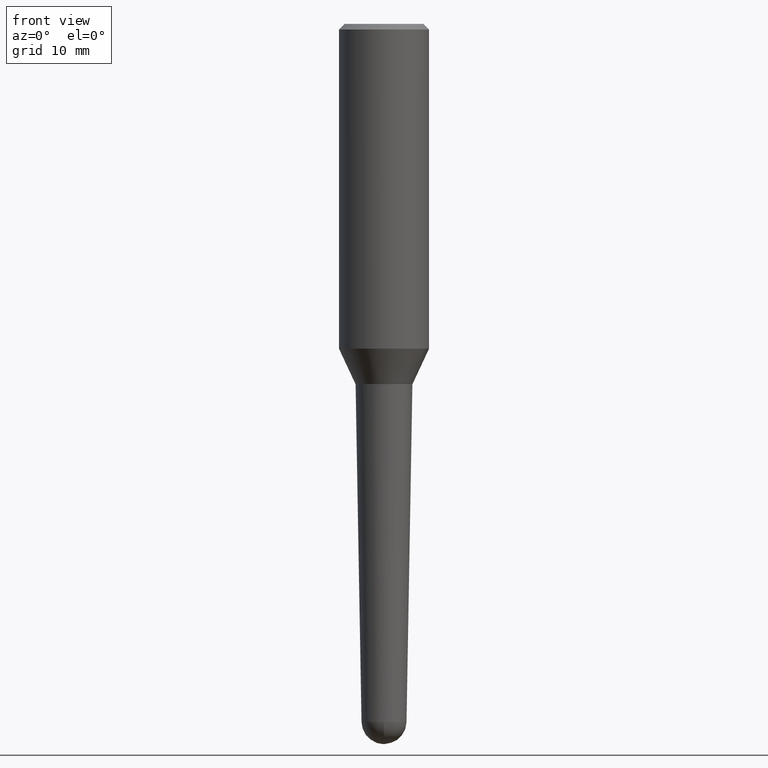
[diagram: clean part render]
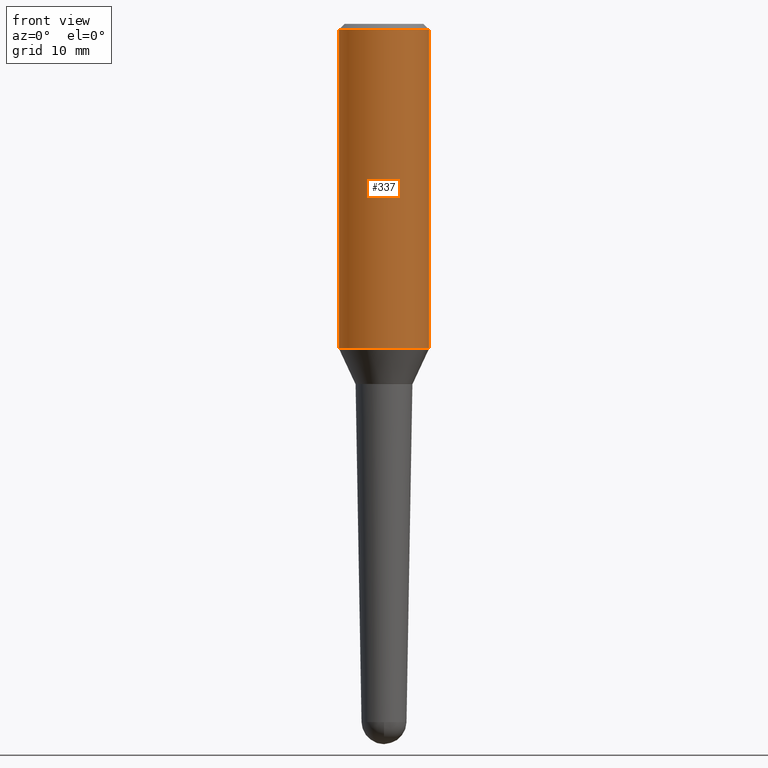
[diagram: same view with one face highlighted and labeled with its STEP entity id]
A machine part, front view. The second image highlights one B-rep face of the part: STEP entity #337.
In plain terms, the highlighted cylindrical surface (partial cylindrical patch) has radius 6.35 mm, axis along (-0, 0, 1).
Its self-contained STEP definition (entity closure, byte-faithful):
#16 = DIRECTION ( 'NONE',  ( -2.445468806185136877E-29, 3.491481338843145188E-15, 1.000000000000000000 ) ) ;
#28 = CARTESIAN_POINT ( 'NONE',  ( -0.2500000000000000000, -1.427178414605507168E-15, -0.03125000000000005551 ) ) ;
#30 = EDGE_LOOP ( 'NONE', ( #117, #183, #320, #225 ) ) ;
#40 = CARTESIAN_POINT ( 'NONE',  ( 7.642090019328565002E-31, -1.091087918388484967E-16, -0.03125000000000005551 ) ) ;
#43 = CARTESIAN_POINT ( 'NONE',  ( -0.2500000000000001110, 1.776356839400253226E-15, 5.931196827434174486E-16 ) ) ;
#45 = VECTOR ( 'NONE', #16, 39.37007874015748143 ) ;
#53 = EDGE_CURVE ( 'NONE', #445, #373, #306, .T. ) ;
#59 = VERTEX_POINT ( 'NONE', #28 ) ;
#84 = CARTESIAN_POINT ( 'NONE',  ( 0.2500000000000001110, -1.745740669421565297E-15, 5.931196827434418047E-16 ) ) ;
#86 = CIRCLE ( 'NONE', #100, 0.2500000000000000000 ) ;
#89 = EDGE_CURVE ( 'NONE', #59, #196, #86, .T. ) ;
#100 = AXIS2_PLACEMENT_3D ( 'NONE', #40, #131, #281 ) ;
#117 = ORIENTED_EDGE ( 'NONE', *, *, #193, .F. ) ;
#118 = CARTESIAN_POINT ( 'NONE',  ( 0.2500000000000000000, -1.854849461260415384E-15, -0.03125000000000005551 ) ) ;
#131 = DIRECTION ( 'NONE',  ( -2.445468806185136597E-29, 3.491481338843145583E-15, 1.000000000000000000 ) ) ;
#174 = CARTESIAN_POINT ( 'NONE',  ( 0.2500000000000002220, -8.043702385594237575E-15, -1.803807927055801397 ) ) ;
#175 = CARTESIAN_POINT ( 'NONE',  ( 4.411156017964436703E-29, -6.297961716172668531E-15, -1.803807927055801397 ) ) ;
#183 = ORIENTED_EDGE ( 'NONE', *, *, #53, .T. ) ;
#193 = EDGE_CURVE ( 'NONE', #445, #59, #233, .T. ) ;
#196 = VERTEX_POINT ( 'NONE', #118 ) ;
#209 = DIRECTION ( 'NONE',  ( 1.000000000000000000, -6.982962677686268288E-15, 0.000000000000000000 ) ) ;
#211 = EDGE_CURVE ( 'NONE', #373, #196, #408, .T. ) ;
#225 = ORIENTED_EDGE ( 'NONE', *, *, #89, .F. ) ;
#230 = DIRECTION ( 'NONE',  ( -2.445468806185136877E-29, 3.491481338843145188E-15, 1.000000000000000000 ) ) ;
#233 = LINE ( 'NONE', #43, #45 ) ;
#242 = VECTOR ( 'NONE', #230, 39.37007874015748143 ) ;
#247 = DIRECTION ( 'NONE',  ( -2.445468806185136597E-29, 3.491481338843145583E-15, 1.000000000000000000 ) ) ;
#264 = AXIS2_PLACEMENT_3D ( 'NONE', #175, #247, #209 ) ;
#271 = AXIS2_PLACEMENT_3D ( 'NONE', #439, #272, #338 ) ;
#272 = DIRECTION ( 'NONE',  ( -2.445468806185136597E-29, 3.491481338843145583E-15, 1.000000000000000000 ) ) ;
#281 = DIRECTION ( 'NONE',  ( 1.000000000000000000, -6.982962677686266711E-15, 0.000000000000000000 ) ) ;
#303 = CYLINDRICAL_SURFACE ( 'NONE', #271, 0.2500000000000001110 ) ;
#306 = CIRCLE ( 'NONE', #264, 0.2500000000000002220 ) ;
#320 = ORIENTED_EDGE ( 'NONE', *, *, #211, .T. ) ;
#335 = FACE_OUTER_BOUND ( 'NONE', #30, .T. ) ;
#337 = ADVANCED_FACE ( 'NONE', ( #335 ), #303, .T. ) ;
#338 = DIRECTION ( 'NONE',  ( 1.000000000000000000, -6.982962677686266711E-15, 4.852736867747363965E-29 ) ) ;
#373 = VERTEX_POINT ( 'NONE', #174 ) ;
#408 = LINE ( 'NONE', #84, #242 ) ;
#439 = CARTESIAN_POINT ( 'NONE',  ( -1.450455682483482035E-44, 2.070866303999251778E-30, 5.931196827434296760E-16 ) ) ;
#445 = VERTEX_POINT ( 'NONE', #447 ) ;
#447 = CARTESIAN_POINT ( 'NONE',  ( -0.2500000000000002220, -4.521604876772416489E-15, -1.803807927055801397 ) ) ;